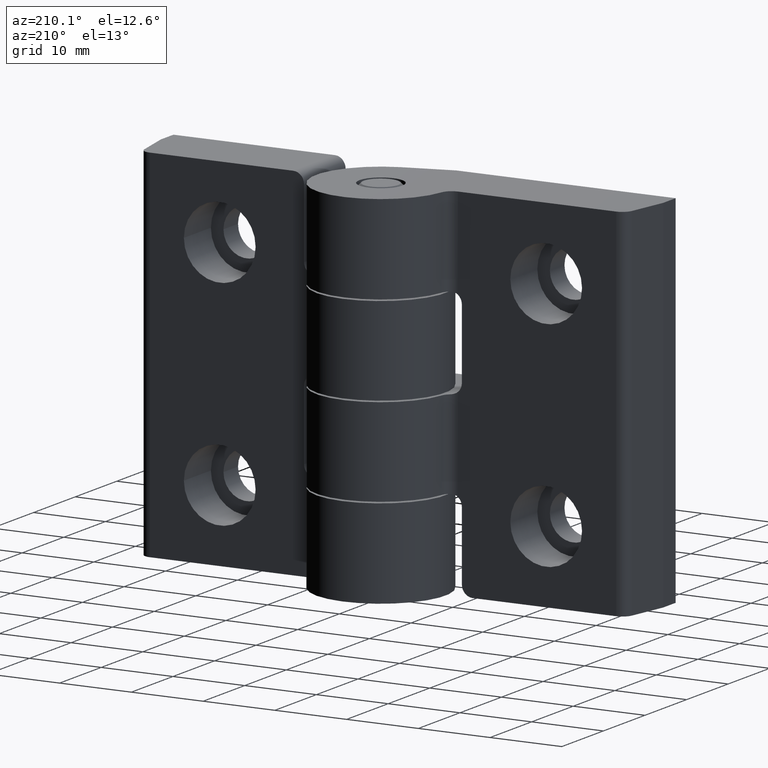
[diagram: clean part render]
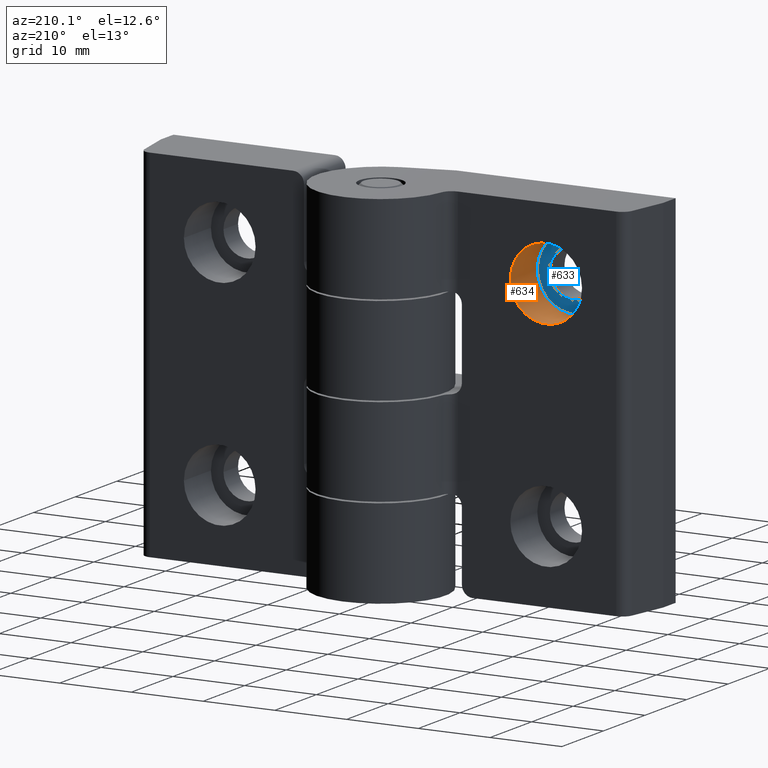
[diagram: same view with the hole feature highlighted: cylindrical wall and planar end face, labeled with their STEP entity ids]
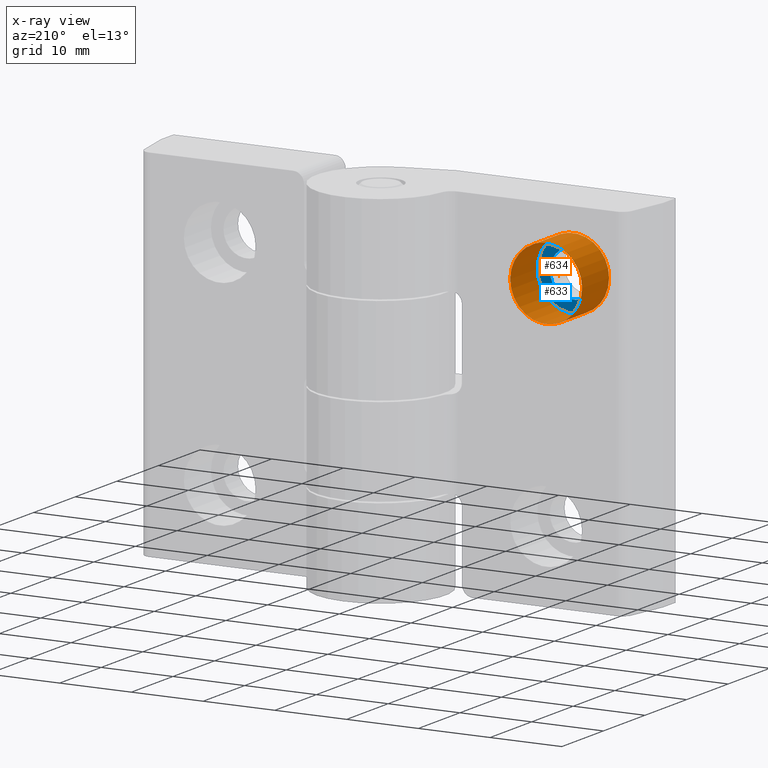
[diagram: x-ray of the same camera — body ghosted, the hole faces saturated]
A machine part, auxiliary view. The highlighted faces form one hole feature of diameter 10 mm: the cylindrical wall (entity #634, orange) and its adjacent planar end face (entity #633, blue) — they share a circular edge in the B-rep.
The next image is the same camera in x-ray (body ghosted, the hole faces saturated) — the bore reads through the body.
Wall:
#38=LINE('',#1050,#86);
#86=VECTOR('',#847,5.);
#134=CYLINDRICAL_SURFACE('',#742,5.);
#162=FACE_OUTER_BOUND('',#199,.T.);
#199=EDGE_LOOP('',(#448,#449,#450,#451,#452,#453));
#245=CIRCLE('',#739,5.);
#246=CIRCLE('',#740,5.);
#248=CIRCLE('',#743,5.);
#249=CIRCLE('',#744,5.);
#285=VERTEX_POINT('',#1039);
#286=VERTEX_POINT('',#1040);
#288=VERTEX_POINT('',#1046);
#289=VERTEX_POINT('',#1047);
#349=EDGE_CURVE('',#285,#286,#245,.T.);
#350=EDGE_CURVE('',#286,#285,#246,.T.);
#352=EDGE_CURVE('',#288,#289,#248,.T.);
#353=EDGE_CURVE('',#289,#288,#249,.T.);
#354=EDGE_CURVE('',#289,#286,#38,.T.);
#448=ORIENTED_EDGE('',*,*,#352,.F.);
#449=ORIENTED_EDGE('',*,*,#353,.F.);
#450=ORIENTED_EDGE('',*,*,#354,.T.);
#451=ORIENTED_EDGE('',*,*,#349,.F.);
#452=ORIENTED_EDGE('',*,*,#350,.F.);
#453=ORIENTED_EDGE('',*,*,#354,.F.);
#634=ADVANCED_FACE('',(#162),#134,.F.);
#739=AXIS2_PLACEMENT_3D('',#1041,#835,#836);
#740=AXIS2_PLACEMENT_3D('',#1042,#837,#838);
#742=AXIS2_PLACEMENT_3D('',#1045,#841,#842);
#743=AXIS2_PLACEMENT_3D('',#1048,#843,#844);
#744=AXIS2_PLACEMENT_3D('',#1049,#845,#846);
#835=DIRECTION('center_axis',(0.,1.,0.));
#836=DIRECTION('ref_axis',(1.,0.,0.));
#837=DIRECTION('center_axis',(0.,1.,0.));
#838=DIRECTION('ref_axis',(1.,0.,0.));
#841=DIRECTION('center_axis',(0.,1.,0.));
#842=DIRECTION('ref_axis',(1.,0.,0.));
#843=DIRECTION('center_axis',(0.,-1.,0.));
#844=DIRECTION('ref_axis',(1.,0.,0.));
#845=DIRECTION('center_axis',(0.,-1.,0.));
#846=DIRECTION('ref_axis',(1.,0.,0.));
#847=DIRECTION('',(0.,-1.,0.));
#1039=CARTESIAN_POINT('',(-17.75,-7.,15.));
#1040=CARTESIAN_POINT('',(-27.75,-7.,15.));
#1041=CARTESIAN_POINT('Origin',(-22.75,-7.,15.));
#1042=CARTESIAN_POINT('Origin',(-22.75,-7.,15.));
#1045=CARTESIAN_POINT('Origin',(-22.75,-3.75,15.));
#1046=CARTESIAN_POINT('',(-17.75,-0.5,15.));
#1047=CARTESIAN_POINT('',(-27.75,-0.5,15.));
#1048=CARTESIAN_POINT('Origin',(-22.75,-0.5,15.));
#1049=CARTESIAN_POINT('Origin',(-22.75,-0.5,15.));
#1050=CARTESIAN_POINT('',(-27.75,-3.75,15.));
End face:
#149=FACE_BOUND('',#198,.T.);
#161=FACE_OUTER_BOUND('',#197,.T.);
#197=EDGE_LOOP('',(#445,#446));
#198=EDGE_LOOP('',(#447));
#245=CIRCLE('',#739,5.);
#246=CIRCLE('',#740,5.);
#247=CIRCLE('',#741,3.25);
#285=VERTEX_POINT('',#1039);
#286=VERTEX_POINT('',#1040);
#287=VERTEX_POINT('',#1043);
#349=EDGE_CURVE('',#285,#286,#245,.T.);
#350=EDGE_CURVE('',#286,#285,#246,.T.);
#351=EDGE_CURVE('',#287,#287,#247,.T.);
#445=ORIENTED_EDGE('',*,*,#349,.T.);
#446=ORIENTED_EDGE('',*,*,#350,.T.);
#447=ORIENTED_EDGE('',*,*,#351,.F.);
#614=PLANE('',#738);
#633=ADVANCED_FACE('',(#161,#149),#614,.T.);
#738=AXIS2_PLACEMENT_3D('',#1038,#833,#834);
#739=AXIS2_PLACEMENT_3D('',#1041,#835,#836);
#740=AXIS2_PLACEMENT_3D('',#1042,#837,#838);
#741=AXIS2_PLACEMENT_3D('',#1044,#839,#840);
#833=DIRECTION('center_axis',(0.,1.,0.));
#834=DIRECTION('ref_axis',(1.,0.,0.));
#835=DIRECTION('center_axis',(0.,1.,0.));
#836=DIRECTION('ref_axis',(1.,0.,0.));
#837=DIRECTION('center_axis',(0.,1.,0.));
#838=DIRECTION('ref_axis',(1.,0.,0.));
#839=DIRECTION('center_axis',(0.,1.,0.));
#840=DIRECTION('ref_axis',(1.,0.,0.));
#1038=CARTESIAN_POINT('Origin',(-22.75,-7.,15.));
#1039=CARTESIAN_POINT('',(-17.75,-7.,15.));
#1040=CARTESIAN_POINT('',(-27.75,-7.,15.));
#1041=CARTESIAN_POINT('Origin',(-22.75,-7.,15.));
#1042=CARTESIAN_POINT('Origin',(-22.75,-7.,15.));
#1043=CARTESIAN_POINT('',(-26.,-7.,15.));
#1044=CARTESIAN_POINT('Origin',(-22.75,-7.,15.));